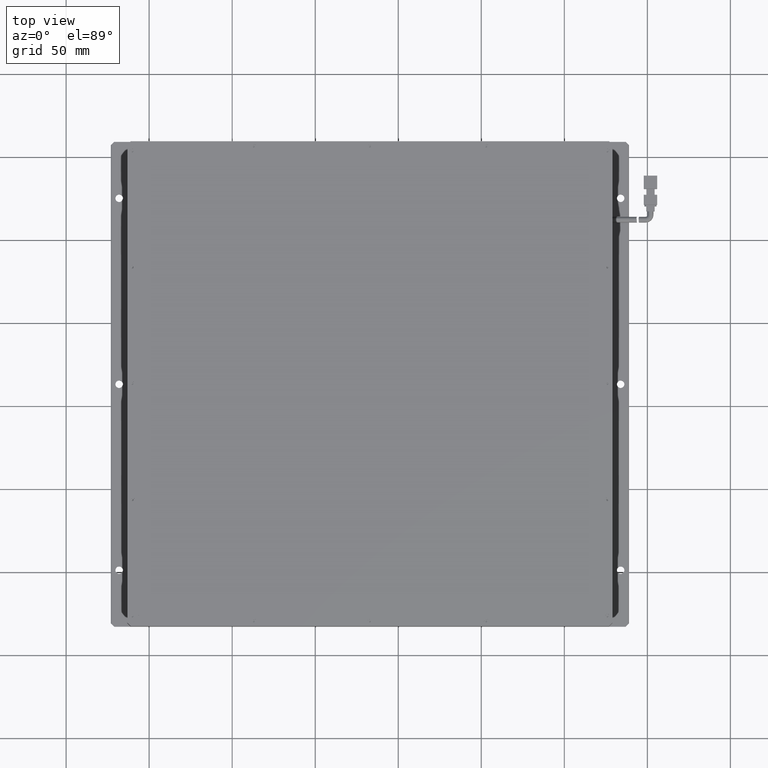
[diagram: clean part render]
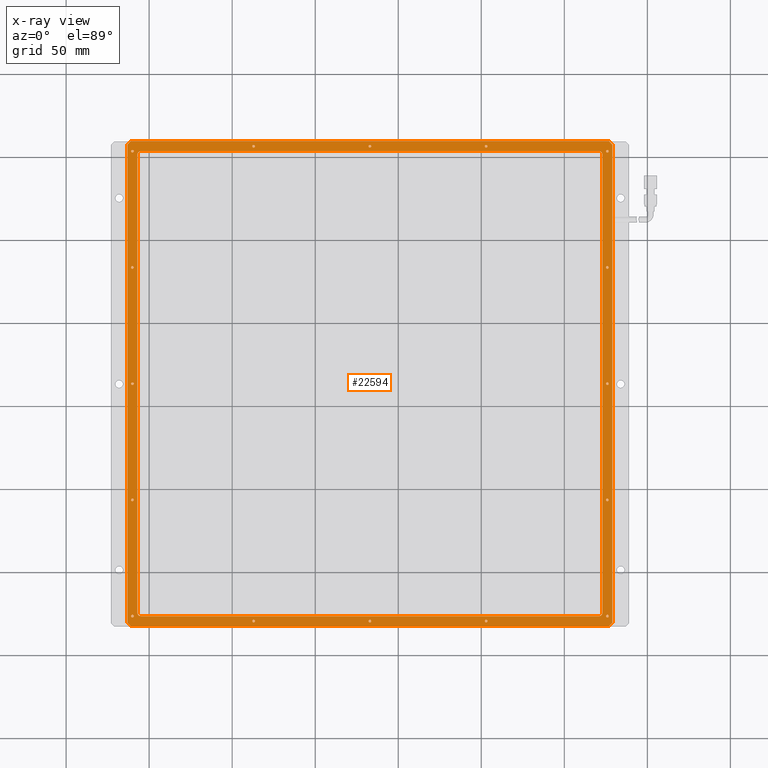
[diagram: x-ray — body ghosted, one internal face saturated and labeled with its STEP entity id]
A machine part, top view, then the same camera in x-ray: the body is ghosted and one INTERNAL B-rep face — a face not visible from any outside direction — is saturated and labeled: STEP entity #22594.
In plain terms, the highlighted planar face has unit normal (0, 0, 1).
Its self-contained STEP definition (entity closure, byte-faithful):
#50 = VERTEX_POINT ( 'NONE', #1793 ) ;
#62 = DIRECTION ( 'NONE',  ( 0.0000000000000000000, 0.0000000000000000000, -1.000000000000000000 ) ) ;
#113 = VECTOR ( 'NONE', #3622, 1000.000000000000000 ) ;
#332 = CARTESIAN_POINT ( 'NONE',  ( -107.0806771263419000, -132.7301954307733600, 8.499999999971805700 ) ) ;
#424 = EDGE_CURVE ( 'NONE', #12317, #22753, #7998, .T. ) ;
#478 = CARTESIAN_POINT ( 'NONE',  ( 102.1193228736582500, -129.7301954307733600, 8.499999999971805700 ) ) ;
#504 = CIRCLE ( 'NONE', #12794, 0.7999999999999951600 ) ;
#559 = LINE ( 'NONE', #19015, #12029 ) ;
#640 = FACE_BOUND ( 'NONE', #18698, .T. ) ;
#721 = CARTESIAN_POINT ( 'NONE',  ( -113.0806771263418400, -130.7301954307733100, 8.499999999971805700 ) ) ;
#850 = DIRECTION ( 'NONE',  ( 1.000000000000000000, 0.0000000000000000000, 0.0000000000000000000 ) ) ;
#1097 = AXIS2_PLACEMENT_3D ( 'NONE', #5478, #20531, #7674 ) ;
#1263 = VERTEX_POINT ( 'NONE', #12936 ) ;
#1323 = VERTEX_POINT ( 'NONE', #17939 ) ;
#1339 = CARTESIAN_POINT ( 'NONE',  ( -37.08067712634184700, -129.7301954307733600, 8.499999999971805700 ) ) ;
#1541 = DIRECTION ( 'NONE',  ( 1.000000000000000000, 0.0000000000000000000, 0.0000000000000000000 ) ) ;
#1647 = DIRECTION ( 'NONE',  ( 0.0000000000000000000, 0.0000000000000000000, -1.000000000000000000 ) ) ;
#1651 = VECTOR ( 'NONE', #25558, 1000.000000000000000 ) ;
#1728 = CARTESIAN_POINT ( 'NONE',  ( -37.08067712634184700, 156.2698045692266600, 8.499999999971805700 ) ) ;
#1776 = VECTOR ( 'NONE', #27655, 999.9999999999998900 ) ;
#1793 = CARTESIAN_POINT ( 'NONE',  ( -110.8806771263418400, 83.26980456922672100, 8.499999999971805700 ) ) ;
#1839 = EDGE_LOOP ( 'NONE', ( #2147, #25087 ) ) ;
#1900 = EDGE_LOOP ( 'NONE', ( #23514, #6297 ) ) ;
#1983 = ORIENTED_EDGE ( 'NONE', *, *, #2063, .T. ) ;
#2063 = EDGE_CURVE ( 'NONE', #11762, #8947, #25928, .T. ) ;
#2090 = CARTESIAN_POINT ( 'NONE',  ( 176.9193228736581900, 159.2698045692267500, 8.499999999971805700 ) ) ;
#2147 = ORIENTED_EDGE ( 'NONE', *, *, #8998, .T. ) ;
#2203 = VERTEX_POINT ( 'NONE', #18184 ) ;
#2238 = DIRECTION ( 'NONE',  ( 0.0000000000000000000, 0.0000000000000000000, -1.000000000000000000 ) ) ;
#2426 = VERTEX_POINT ( 'NONE', #10258 ) ;
#2656 = CIRCLE ( 'NONE', #8878, 0.7999999999999951600 ) ;
#2798 = DIRECTION ( 'NONE',  ( 1.000000000000000000, 0.0000000000000000000, 0.0000000000000000000 ) ) ;
#2836 = VERTEX_POINT ( 'NONE', #23861 ) ;
#2881 = DIRECTION ( 'NONE',  ( 0.7071067811865376900, -0.7071067811865574500, 0.0000000000000000000 ) ) ;
#3119 = VERTEX_POINT ( 'NONE', #18456 ) ;
#3228 = VERTEX_POINT ( 'NONE', #13165 ) ;
#3233 = ORIENTED_EDGE ( 'NONE', *, *, #424, .T. ) ;
#3492 = DIRECTION ( 'NONE',  ( 1.000000000000000000, 0.0000000000000000000, 0.0000000000000000000 ) ) ;
#3620 = EDGE_CURVE ( 'NONE', #11429, #25683, #9402, .T. ) ;
#3622 = DIRECTION ( 'NONE',  ( -0.0000000000000000000, 1.000000000000000000, 0.0000000000000000000 ) ) ;
#3641 = ORIENTED_EDGE ( 'NONE', *, *, #16183, .T. ) ;
#3754 = VERTEX_POINT ( 'NONE', #6618 ) ;
#3818 = DIRECTION ( 'NONE',  ( 0.0000000000000000000, 0.0000000000000000000, 1.000000000000000000 ) ) ;
#3832 = ORIENTED_EDGE ( 'NONE', *, *, #19200, .T. ) ;
#3846 = EDGE_CURVE ( 'NONE', #14495, #6368, #27754, .T. ) ;
#3924 = VERTEX_POINT ( 'NONE', #5199 ) ;
#3995 = CARTESIAN_POINT ( 'NONE',  ( 176.9193228736579000, -132.7301954307733900, 8.499999999971805700 ) ) ;
#4058 = CARTESIAN_POINT ( 'NONE',  ( 33.71932287365817200, 156.2698045692266600, 8.499999999971805700 ) ) ;
#4094 = DIRECTION ( 'NONE',  ( -0.0000000000000000000, -0.0000000000000000000, -1.000000000000000000 ) ) ;
#4140 = CARTESIAN_POINT ( 'NONE',  ( 175.9193228736581900, -56.73019543077334200, 8.499999999971805700 ) ) ;
#4235 = DIRECTION ( 'NONE',  ( 0.0000000000000000000, 0.0000000000000000000, -1.000000000000000000 ) ) ;
#4264 = DIRECTION ( 'NONE',  ( 0.0000000000000000000, 0.0000000000000000000, -1.000000000000000000 ) ) ;
#4274 = EDGE_CURVE ( 'NONE', #27012, #4838, #559, .T. ) ;
#4335 = EDGE_CURVE ( 'NONE', #17351, #3119, #18098, .T. ) ;
#4356 = AXIS2_PLACEMENT_3D ( 'NONE', #9405, #24348, #11567 ) ;
#4393 = EDGE_LOOP ( 'NONE', ( #10611, #11687 ) ) ;
#4442 = VERTEX_POINT ( 'NONE', #8756 ) ;
#4501 = EDGE_LOOP ( 'NONE', ( #17293, #17958 ) ) ;
#4527 = DIRECTION ( 'NONE',  ( 0.7071067811865650000, 0.7071067811865300300, 0.0000000000000000000 ) ) ;
#4559 = AXIS2_PLACEMENT_3D ( 'NONE', #13676, #15711, #2798 ) ;
#4707 = CARTESIAN_POINT ( 'NONE',  ( -113.0806771263418400, 159.2698045692266900, 8.499999999971805700 ) ) ;
#4760 = ORIENTED_EDGE ( 'NONE', *, *, #7381, .T. ) ;
#4807 = VECTOR ( 'NONE', #13617, 1000.000000000000000 ) ;
#4815 = CIRCLE ( 'NONE', #26429, 2.000000000000001800 ) ;
#4835 = LINE ( 'NONE', #332, #9884 ) ;
#4838 = VERTEX_POINT ( 'NONE', #11902 ) ;
#4845 = ORIENTED_EDGE ( 'NONE', *, *, #12743, .T. ) ;
#4998 = FACE_BOUND ( 'NONE', #9195, .T. ) ;
#5100 = VECTOR ( 'NONE', #4527, 1000.000000000000100 ) ;
#5195 = LINE ( 'NONE', #21860, #22261 ) ;
#5199 = CARTESIAN_POINT ( 'NONE',  ( -110.8806771263418400, -56.73019543077334200, 8.499999999971805700 ) ) ;
#5363 = EDGE_CURVE ( 'NONE', #11492, #17712, #18186, .T. ) ;
#5478 = CARTESIAN_POINT ( 'NONE',  ( -110.0806771263418400, 153.2698045692266600, 8.499999999971805700 ) ) ;
#5653 = EDGE_CURVE ( 'NONE', #3754, #14346, #6985, .T. ) ;
#5684 = FACE_BOUND ( 'NONE', #22458, .T. ) ;
#5702 = CIRCLE ( 'NONE', #19578, 0.8000000000000229200 ) ;
#5764 = CARTESIAN_POINT ( 'NONE',  ( -110.8806771263418400, 153.2698045692266600, 8.499999999971805700 ) ) ;
#5787 = EDGE_CURVE ( 'NONE', #50, #2203, #13052, .T. ) ;
#5788 = LINE ( 'NONE', #19596, #5100 ) ;
#5838 = LINE ( 'NONE', #7955, #113 ) ;
#5842 = CARTESIAN_POINT ( 'NONE',  ( -113.0806771263418400, 157.2698045692267200, 8.499999999971805700 ) ) ;
#5882 = AXIS2_PLACEMENT_3D ( 'NONE', #12980, #62, #15177 ) ;
#5888 = CARTESIAN_POINT ( 'NONE',  ( -110.8806771263418400, -126.7301954307733500, 8.499999999971805700 ) ) ;
#5945 = EDGE_CURVE ( 'NONE', #2203, #50, #24007, .T. ) ;
#6160 = ORIENTED_EDGE ( 'NONE', *, *, #5653, .T. ) ;
#6251 = AXIS2_PLACEMENT_3D ( 'NONE', #20444, #7571, #22499 ) ;
#6272 = CARTESIAN_POINT ( 'NONE',  ( -113.0806771263418400, -126.7301954307734100, 8.499999999971805700 ) ) ;
#6297 = ORIENTED_EDGE ( 'NONE', *, *, #16479, .T. ) ;
#6320 = DIRECTION ( 'NONE',  ( 1.000000000000000000, 0.0000000000000000000, 0.0000000000000000000 ) ) ;
#6368 = VERTEX_POINT ( 'NONE', #3995 ) ;
#6374 = FACE_BOUND ( 'NONE', #24618, .T. ) ;
#6606 = ORIENTED_EDGE ( 'NONE', *, *, #24436, .T. ) ;
#6618 = CARTESIAN_POINT ( 'NONE',  ( 32.11932287365817700, -129.7301954307733600, 8.499999999971805700 ) ) ;
#6717 = DIRECTION ( 'NONE',  ( 1.000000000000000000, 0.0000000000000000000, -0.0000000000000000000 ) ) ;
#6790 = CARTESIAN_POINT ( 'NONE',  ( 175.9193228736581900, 153.2698045692266600, 8.499999999971805700 ) ) ;
#6874 = CARTESIAN_POINT ( 'NONE',  ( 32.91932287365817400, 156.2698045692266600, 8.499999999971805700 ) ) ;
#6897 = EDGE_LOOP ( 'NONE', ( #6978, #10483 ) ) ;
#6928 = VERTEX_POINT ( 'NONE', #5764 ) ;
#6978 = ORIENTED_EDGE ( 'NONE', *, *, #24961, .T. ) ;
#6985 = CIRCLE ( 'NONE', #26753, 0.7999999999999951600 ) ;
#6999 = ORIENTED_EDGE ( 'NONE', *, *, #23525, .T. ) ;
#7076 = CARTESIAN_POINT ( 'NONE',  ( 102.1193228736582500, 156.2698045692266600, 8.499999999971805700 ) ) ;
#7212 = DIRECTION ( 'NONE',  ( 0.0000000000000000000, 0.0000000000000000000, -1.000000000000000000 ) ) ;
#7381 = EDGE_CURVE ( 'NONE', #9310, #2836, #14502, .T. ) ;
#7455 = EDGE_CURVE ( 'NONE', #14346, #3754, #11064, .T. ) ;
#7457 = EDGE_CURVE ( 'NONE', #3228, #1323, #25439, .T. ) ;
#7571 = DIRECTION ( 'NONE',  ( 0.0000000000000000000, 0.0000000000000000000, -1.000000000000000000 ) ) ;
#7578 = CARTESIAN_POINT ( 'NONE',  ( -113.0806771263418400, -132.7301954307733600, 8.499999999971805700 ) ) ;
#7674 = DIRECTION ( 'NONE',  ( 1.000000000000000000, 0.0000000000000000000, 0.0000000000000000000 ) ) ;
#7747 = CARTESIAN_POINT ( 'NONE',  ( 102.9193228736582300, 156.2698045692266600, 8.499999999971805700 ) ) ;
#7809 = CIRCLE ( 'NONE', #11195, 0.8000000000000229200 ) ;
#7890 = CARTESIAN_POINT ( 'NONE',  ( -37.08067712634184700, 156.2698045692266600, 8.499999999971805700 ) ) ;
#7902 = EDGE_LOOP ( 'NONE', ( #14910, #22941, #10384, #17649, #8822, #8657, #10318, #3832 ) ) ;
#7955 = CARTESIAN_POINT ( 'NONE',  ( 178.9193228736581900, -132.7301954307733600, 8.499999999971805700 ) ) ;
#7989 = AXIS2_PLACEMENT_3D ( 'NONE', #10800, #11443, #11160 ) ;
#7998 = CIRCLE ( 'NONE', #7989, 2.000000000000001800 ) ;
#8022 = AXIS2_PLACEMENT_3D ( 'NONE', #19851, #20021, #19760 ) ;
#8078 = DIRECTION ( 'NONE',  ( 0.0000000000000000000, 0.0000000000000000000, -1.000000000000000000 ) ) ;
#8135 = CARTESIAN_POINT ( 'NONE',  ( -110.0806771263418400, -56.73019543077334200, 8.499999999971805700 ) ) ;
#8304 = EDGE_CURVE ( 'NONE', #17712, #9339, #12340, .T. ) ;
#8416 = AXIS2_PLACEMENT_3D ( 'NONE', #24111, #24013, #23825 ) ;
#8435 = DIRECTION ( 'NONE',  ( -1.000000000000000000, -0.0000000000000000000, 0.0000000000000000000 ) ) ;
#8511 = EDGE_CURVE ( 'NONE', #19435, #12853, #12985, .T. ) ;
#8581 = DIRECTION ( 'NONE',  ( 1.000000000000000000, 0.0000000000000000000, 0.0000000000000000000 ) ) ;
#8636 = AXIS2_PLACEMENT_3D ( 'NONE', #11185, #26151, #13388 ) ;
#8657 = ORIENTED_EDGE ( 'NONE', *, *, #5363, .T. ) ;
#8732 = ORIENTED_EDGE ( 'NONE', *, *, #17129, .T. ) ;
#8756 = CARTESIAN_POINT ( 'NONE',  ( 175.1193228736581800, 83.26980456922672100, 8.499999999971805700 ) ) ;
#8815 = EDGE_LOOP ( 'NONE', ( #6606, #11640 ) ) ;
#8822 = ORIENTED_EDGE ( 'NONE', *, *, #13179, .T. ) ;
#8847 = EDGE_CURVE ( 'NONE', #12853, #19435, #21880, .T. ) ;
#8878 = AXIS2_PLACEMENT_3D ( 'NONE', #11434, #26376, #13620 ) ;
#8902 = CARTESIAN_POINT ( 'NONE',  ( 103.7193228736582300, 156.2698045692266600, 8.499999999971805700 ) ) ;
#8920 = CARTESIAN_POINT ( 'NONE',  ( 103.7193228736582300, -129.7301954307733600, 8.499999999971805700 ) ) ;
#8947 = VERTEX_POINT ( 'NONE', #8920 ) ;
#8950 = DIRECTION ( 'NONE',  ( 1.000000000000000000, 0.0000000000000000000, 0.0000000000000000000 ) ) ;
#8998 = EDGE_CURVE ( 'NONE', #25683, #11429, #27246, .T. ) ;
#9038 = DIRECTION ( 'NONE',  ( 1.000000000000000000, 0.0000000000000000000, 0.0000000000000000000 ) ) ;
#9092 = CARTESIAN_POINT ( 'NONE',  ( -110.0806771263418400, 13.26980456922666100, 8.499999999971805700 ) ) ;
#9195 = EDGE_LOOP ( 'NONE', ( #16217, #8732 ) ) ;
#9267 = CARTESIAN_POINT ( 'NONE',  ( -107.0806771263419000, 151.2698045692266100, 8.499999999971805700 ) ) ;
#9310 = VERTEX_POINT ( 'NONE', #22986 ) ;
#9339 = VERTEX_POINT ( 'NONE', #25144 ) ;
#9402 = CIRCLE ( 'NONE', #8416, 0.7999999999999951600 ) ;
#9405 = CARTESIAN_POINT ( 'NONE',  ( -110.0806771263418400, -126.7301954307733500, 8.499999999971805700 ) ) ;
#9478 = CIRCLE ( 'NONE', #23002, 0.7999999999999951600 ) ;
#9518 = VERTEX_POINT ( 'NONE', #19528 ) ;
#9860 = DIRECTION ( 'NONE',  ( 1.000000000000000000, 0.0000000000000000000, 0.0000000000000000000 ) ) ;
#9884 = VECTOR ( 'NONE', #13237, 1000.000000000000000 ) ;
#9909 = EDGE_LOOP ( 'NONE', ( #26731, #10608 ) ) ;
#10024 = DIRECTION ( 'NONE',  ( 1.000000000000000000, 0.0000000000000000000, 0.0000000000000000000 ) ) ;
#10114 = PLANE ( 'NONE',  #19884 ) ;
#10258 = CARTESIAN_POINT ( 'NONE',  ( 175.1193228736581800, 153.2698045692266600, 8.499999999971805700 ) ) ;
#10272 = EDGE_CURVE ( 'NONE', #25367, #19043, #25295, .T. ) ;
#10279 = EDGE_LOOP ( 'NONE', ( #11700, #17874 ) ) ;
#10281 = DIRECTION ( 'NONE',  ( 1.000000000000000000, 0.0000000000000000000, 0.0000000000000000000 ) ) ;
#10318 = ORIENTED_EDGE ( 'NONE', *, *, #8304, .T. ) ;
#10384 = ORIENTED_EDGE ( 'NONE', *, *, #3846, .T. ) ;
#10424 = LINE ( 'NONE', #721, #26810 ) ;
#10443 = CARTESIAN_POINT ( 'NONE',  ( -107.0806771263419000, -124.7301954307734100, 8.499999999971805700 ) ) ;
#10483 = ORIENTED_EDGE ( 'NONE', *, *, #21850, .T. ) ;
#10536 = DIRECTION ( 'NONE',  ( 0.0000000000000000000, 0.0000000000000000000, -1.000000000000000000 ) ) ;
#10608 = ORIENTED_EDGE ( 'NONE', *, *, #16651, .T. ) ;
#10611 = ORIENTED_EDGE ( 'NONE', *, *, #5945, .T. ) ;
#10633 = AXIS2_PLACEMENT_3D ( 'NONE', #17205, #4264, #19331 ) ;
#10640 = ORIENTED_EDGE ( 'NONE', *, *, #22559, .T. ) ;
#10735 = FACE_BOUND ( 'NONE', #8815, .T. ) ;
#10739 = CARTESIAN_POINT ( 'NONE',  ( 32.91932287365817400, -129.7301954307733600, 8.499999999971805700 ) ) ;
#10800 = CARTESIAN_POINT ( 'NONE',  ( 170.9193228736581300, 151.2698045692266100, 8.499999999971805700 ) ) ;
#10856 = CARTESIAN_POINT ( 'NONE',  ( 175.9193228736581900, 83.26980456922672100, 8.499999999971805700 ) ) ;
#10862 = AXIS2_PLACEMENT_3D ( 'NONE', #1728, #1647, #1541 ) ;
#10955 = CARTESIAN_POINT ( 'NONE',  ( 32.91932287365817400, -129.7301954307733600, 8.499999999971805700 ) ) ;
#10974 = EDGE_CURVE ( 'NONE', #19043, #12317, #16296, .T. ) ;
#11011 = DIRECTION ( 'NONE',  ( 0.0000000000000000000, 0.0000000000000000000, -1.000000000000000000 ) ) ;
#11064 = CIRCLE ( 'NONE', #23751, 0.7999999999999951600 ) ;
#11152 = DIRECTION ( 'NONE',  ( -0.0000000000000000000, 0.0000000000000000000, -1.000000000000000000 ) ) ;
#11160 = DIRECTION ( 'NONE',  ( 1.000000000000000000, 0.0000000000000000000, 0.0000000000000000000 ) ) ;
#11185 = CARTESIAN_POINT ( 'NONE',  ( -105.0806771263419000, 151.2698045692266100, 8.499999999971805700 ) ) ;
#11195 = AXIS2_PLACEMENT_3D ( 'NONE', #4140, #19224, #6320 ) ;
#11241 = DIRECTION ( 'NONE',  ( 1.000000000000000000, 0.0000000000000000000, 0.0000000000000000000 ) ) ;
#11338 = EDGE_CURVE ( 'NONE', #6928, #15326, #25577, .T. ) ;
#11400 = FACE_BOUND ( 'NONE', #10279, .T. ) ;
#11429 = VERTEX_POINT ( 'NONE', #12273 ) ;
#11431 = CARTESIAN_POINT ( 'NONE',  ( -113.0806771263418400, 153.2698045692266100, 8.499999999971805700 ) ) ;
#11434 = CARTESIAN_POINT ( 'NONE',  ( -110.0806771263418400, 153.2698045692266600, 8.499999999971805700 ) ) ;
#11443 = DIRECTION ( 'NONE',  ( -0.0000000000000000000, -0.0000000000000000000, -1.000000000000000000 ) ) ;
#11446 = CIRCLE ( 'NONE', #4356, 0.7999999999999951600 ) ;
#11492 = VERTEX_POINT ( 'NONE', #12482 ) ;
#11567 = DIRECTION ( 'NONE',  ( 1.000000000000000000, 0.0000000000000000000, 0.0000000000000000000 ) ) ;
#11614 = DIRECTION ( 'NONE',  ( 1.000000000000000000, 0.0000000000000000000, 0.0000000000000000000 ) ) ;
#11640 = ORIENTED_EDGE ( 'NONE', *, *, #20683, .T. ) ;
#11687 = ORIENTED_EDGE ( 'NONE', *, *, #5787, .T. ) ;
#11700 = ORIENTED_EDGE ( 'NONE', *, *, #12613, .T. ) ;
#11762 = VERTEX_POINT ( 'NONE', #478 ) ;
#11902 = CARTESIAN_POINT ( 'NONE',  ( -113.0806771263418400, -130.7301954307733100, 8.499999999971805700 ) ) ;
#11959 = DIRECTION ( 'NONE',  ( 0.0000000000000000000, 0.0000000000000000000, -1.000000000000000000 ) ) ;
#12029 = VECTOR ( 'NONE', #18577, 1000.000000000000000 ) ;
#12032 = CARTESIAN_POINT ( 'NONE',  ( -109.2806771263418400, 153.2698045692266600, 8.499999999971805700 ) ) ;
#12115 = FACE_BOUND ( 'NONE', #6897, .T. ) ;
#12141 = ORIENTED_EDGE ( 'NONE', *, *, #12706, .T. ) ;
#12273 = CARTESIAN_POINT ( 'NONE',  ( -110.8806771263418400, 13.26980456922666100, 8.499999999971805700 ) ) ;
#12275 = EDGE_CURVE ( 'NONE', #15326, #6928, #2656, .T. ) ;
#12317 = VERTEX_POINT ( 'NONE', #15880 ) ;
#12340 = LINE ( 'NONE', #4707, #23652 ) ;
#12374 = EDGE_LOOP ( 'NONE', ( #20207, #19707 ) ) ;
#12482 = CARTESIAN_POINT ( 'NONE',  ( 178.9193228736582500, 157.2698045692267200, 8.499999999971805700 ) ) ;
#12516 = DIRECTION ( 'NONE',  ( 0.0000000000000000000, 0.0000000000000000000, -1.000000000000000000 ) ) ;
#12613 = EDGE_CURVE ( 'NONE', #19738, #21325, #14672, .T. ) ;
#12706 = EDGE_CURVE ( 'NONE', #24592, #16095, #4815, .T. ) ;
#12743 = EDGE_CURVE ( 'NONE', #18529, #24592, #27607, .T. ) ;
#12794 = AXIS2_PLACEMENT_3D ( 'NONE', #24727, #11959, #26863 ) ;
#12795 = FACE_BOUND ( 'NONE', #1900, .T. ) ;
#12853 = VERTEX_POINT ( 'NONE', #8902 ) ;
#12936 = CARTESIAN_POINT ( 'NONE',  ( 172.9193228736581300, -124.7301954307734100, 8.499999999971805700 ) ) ;
#12957 = CARTESIAN_POINT ( 'NONE',  ( -109.2806771263418400, 13.26980456922666100, 8.499999999971805700 ) ) ;
#12961 = DIRECTION ( 'NONE',  ( 0.0000000000000000000, 0.0000000000000000000, -1.000000000000000000 ) ) ;
#12980 = CARTESIAN_POINT ( 'NONE',  ( 102.9193228736582300, 156.2698045692266600, 8.499999999971805700 ) ) ;
#12985 = CIRCLE ( 'NONE', #21796, 0.7999999999999951600 ) ;
#13017 = ORIENTED_EDGE ( 'NONE', *, *, #21825, .T. ) ;
#13052 = CIRCLE ( 'NONE', #24788, 0.7999999999999951600 ) ;
#13061 = DIRECTION ( 'NONE',  ( 1.000000000000000000, 0.0000000000000000000, 0.0000000000000000000 ) ) ;
#13165 = CARTESIAN_POINT ( 'NONE',  ( 176.7193228736582000, -126.7301954307733500, 8.499999999971805700 ) ) ;
#13179 = EDGE_CURVE ( 'NONE', #24781, #11492, #5838, .T. ) ;
#13237 = DIRECTION ( 'NONE',  ( -0.0000000000000000000, 1.000000000000000000, 0.0000000000000000000 ) ) ;
#13388 = DIRECTION ( 'NONE',  ( 1.000000000000000000, 0.0000000000000000000, 0.0000000000000000000 ) ) ;
#13576 = AXIS2_PLACEMENT_3D ( 'NONE', #20894, #8078, #23008 ) ;
#13617 = DIRECTION ( 'NONE',  ( 1.000000000000000000, 0.0000000000000000000, -0.0000000000000000000 ) ) ;
#13620 = DIRECTION ( 'NONE',  ( 1.000000000000000000, 0.0000000000000000000, 0.0000000000000000000 ) ) ;
#13676 = CARTESIAN_POINT ( 'NONE',  ( 175.9193228736581900, -126.7301954307733500, 8.499999999971805700 ) ) ;
#13768 = DIRECTION ( 'NONE',  ( 0.0000000000000000000, 0.0000000000000000000, -1.000000000000000000 ) ) ;
#13813 = DIRECTION ( 'NONE',  ( 1.000000000000000000, 0.0000000000000000000, 0.0000000000000000000 ) ) ;
#13889 = EDGE_CURVE ( 'NONE', #21325, #19738, #7809, .T. ) ;
#13948 = DIRECTION ( 'NONE',  ( 1.000000000000000000, 0.0000000000000000000, 0.0000000000000000000 ) ) ;
#13985 = DIRECTION ( 'NONE',  ( 0.0000000000000000000, 0.0000000000000000000, -1.000000000000000000 ) ) ;
#14005 = ORIENTED_EDGE ( 'NONE', *, *, #24201, .T. ) ;
#14008 = DIRECTION ( 'NONE',  ( 0.0000000000000000000, 0.0000000000000000000, -1.000000000000000000 ) ) ;
#14056 = CARTESIAN_POINT ( 'NONE',  ( 175.9193228736581900, 13.26980456922666100, 8.499999999971805700 ) ) ;
#14105 = CARTESIAN_POINT ( 'NONE',  ( -110.0806771263418400, 83.26980456922672100, 8.499999999971805700 ) ) ;
#14107 = CIRCLE ( 'NONE', #16383, 0.8000000000000229200 ) ;
#14124 = EDGE_CURVE ( 'NONE', #19376, #23975, #11446, .T. ) ;
#14346 = VERTEX_POINT ( 'NONE', #19381 ) ;
#14405 = ORIENTED_EDGE ( 'NONE', *, *, #7455, .T. ) ;
#14495 = VERTEX_POINT ( 'NONE', #24140 ) ;
#14502 = CIRCLE ( 'NONE', #10862, 0.7999999999999951600 ) ;
#14672 = CIRCLE ( 'NONE', #13576, 0.8000000000000229200 ) ;
#14910 = ORIENTED_EDGE ( 'NONE', *, *, #4274, .T. ) ;
#14949 = CARTESIAN_POINT ( 'NONE',  ( -111.0806771263418300, 159.2698045692267500, 8.499999999971805700 ) ) ;
#15177 = DIRECTION ( 'NONE',  ( 1.000000000000000000, 0.0000000000000000000, 0.0000000000000000000 ) ) ;
#15193 = CARTESIAN_POINT ( 'NONE',  ( 175.9193228736581900, 83.26980456922672100, 8.499999999971805700 ) ) ;
#15269 = AXIS2_PLACEMENT_3D ( 'NONE', #26501, #13768, #850 ) ;
#15326 = VERTEX_POINT ( 'NONE', #12032 ) ;
#15368 = ORIENTED_EDGE ( 'NONE', *, *, #25303, .T. ) ;
#15437 = CARTESIAN_POINT ( 'NONE',  ( 32.11932287365817700, 156.2698045692266600, 8.499999999971805700 ) ) ;
#15711 = DIRECTION ( 'NONE',  ( 0.0000000000000000000, 0.0000000000000000000, -1.000000000000000000 ) ) ;
#15770 = ORIENTED_EDGE ( 'NONE', *, *, #17702, .T. ) ;
#15790 = CARTESIAN_POINT ( 'NONE',  ( 175.1193228736581800, 13.26980456922666100, 8.499999999971805700 ) ) ;
#15880 = CARTESIAN_POINT ( 'NONE',  ( 170.9193228736581300, 153.2698045692266100, 8.499999999971805700 ) ) ;
#15907 = CIRCLE ( 'NONE', #21578, 0.8000000000000229200 ) ;
#16095 = VERTEX_POINT ( 'NONE', #10443 ) ;
#16183 = EDGE_CURVE ( 'NONE', #2426, #22303, #5702, .T. ) ;
#16217 = ORIENTED_EDGE ( 'NONE', *, *, #14124, .T. ) ;
#16296 = LINE ( 'NONE', #11431, #4807 ) ;
#16346 = EDGE_LOOP ( 'NONE', ( #24669, #25193 ) ) ;
#16383 = AXIS2_PLACEMENT_3D ( 'NONE', #15193, #2238, #17347 ) ;
#16396 = DIRECTION ( 'NONE',  ( 0.0000000000000000000, 0.0000000000000000000, -1.000000000000000000 ) ) ;
#16479 = EDGE_CURVE ( 'NONE', #17869, #25060, #23080, .T. ) ;
#16480 = FACE_BOUND ( 'NONE', #1839, .T. ) ;
#16651 = EDGE_CURVE ( 'NONE', #4442, #9518, #14107, .T. ) ;
#16740 = CARTESIAN_POINT ( 'NONE',  ( -113.0806771263418400, -132.7301954307733600, 8.499999999971805700 ) ) ;
#17028 = CARTESIAN_POINT ( 'NONE',  ( -105.0806771263419000, -124.7301954307734100, 8.499999999971805700 ) ) ;
#17061 = CARTESIAN_POINT ( 'NONE',  ( 176.7193228736582000, -56.73019543077334200, 8.499999999971805700 ) ) ;
#17129 = EDGE_CURVE ( 'NONE', #23975, #19376, #20040, .T. ) ;
#17178 = CARTESIAN_POINT ( 'NONE',  ( 175.9193228736581900, 153.2698045692266600, 8.499999999971805700 ) ) ;
#17181 = FACE_BOUND ( 'NONE', #16346, .T. ) ;
#17205 = CARTESIAN_POINT ( 'NONE',  ( 102.9193228736582300, -129.7301954307733600, 8.499999999971805700 ) ) ;
#17269 = VERTEX_POINT ( 'NONE', #15437 ) ;
#17293 = ORIENTED_EDGE ( 'NONE', *, *, #12275, .T. ) ;
#17347 = DIRECTION ( 'NONE',  ( 1.000000000000000000, 0.0000000000000000000, 0.0000000000000000000 ) ) ;
#17351 = VERTEX_POINT ( 'NONE', #15790 ) ;
#17383 = CIRCLE ( 'NONE', #25963, 2.000000000000001800 ) ;
#17411 = CARTESIAN_POINT ( 'NONE',  ( 172.9193228736581300, 151.2698045692266100, 8.499999999971805700 ) ) ;
#17493 = CARTESIAN_POINT ( 'NONE',  ( -37.88067712634184400, -129.7301954307733600, 8.499999999971805700 ) ) ;
#17649 = ORIENTED_EDGE ( 'NONE', *, *, #19319, .T. ) ;
#17702 = EDGE_CURVE ( 'NONE', #8947, #11762, #21865, .T. ) ;
#17703 = EDGE_LOOP ( 'NONE', ( #15770, #1983 ) ) ;
#17712 = VERTEX_POINT ( 'NONE', #2090 ) ;
#17867 = FACE_BOUND ( 'NONE', #19490, .T. ) ;
#17869 = VERTEX_POINT ( 'NONE', #17493 ) ;
#17874 = ORIENTED_EDGE ( 'NONE', *, *, #13889, .T. ) ;
#17939 = CARTESIAN_POINT ( 'NONE',  ( 175.1193228736581800, -126.7301954307733500, 8.499999999971805700 ) ) ;
#17958 = ORIENTED_EDGE ( 'NONE', *, *, #11338, .T. ) ;
#17996 = CIRCLE ( 'NONE', #18702, 0.8000000000000229200 ) ;
#18098 = CIRCLE ( 'NONE', #25830, 0.8000000000000229200 ) ;
#18137 = AXIS2_PLACEMENT_3D ( 'NONE', #20104, #7212, #22142 ) ;
#18182 = ORIENTED_EDGE ( 'NONE', *, *, #25275, .T. ) ;
#18184 = CARTESIAN_POINT ( 'NONE',  ( -109.2806771263418400, 83.26980456922672100, 8.499999999971805700 ) ) ;
#18186 = LINE ( 'NONE', #19183, #1651 ) ;
#18211 = AXIS2_PLACEMENT_3D ( 'NONE', #8135, #23078, #10281 ) ;
#18456 = CARTESIAN_POINT ( 'NONE',  ( 176.7193228736582000, 13.26980456922666100, 8.499999999971805700 ) ) ;
#18529 = VERTEX_POINT ( 'NONE', #24613 ) ;
#18577 = DIRECTION ( 'NONE',  ( 0.0000000000000000000, -1.000000000000000000, -0.0000000000000000000 ) ) ;
#18698 = EDGE_LOOP ( 'NONE', ( #13017, #3641 ) ) ;
#18702 = AXIS2_PLACEMENT_3D ( 'NONE', #10856, #25824, #13061 ) ;
#18726 = CARTESIAN_POINT ( 'NONE',  ( -36.28067712634185000, -129.7301954307733600, 8.499999999971805700 ) ) ;
#18736 = ORIENTED_EDGE ( 'NONE', *, *, #10272, .T. ) ;
#18881 = DIRECTION ( 'NONE',  ( 1.000000000000000000, 0.0000000000000000000, -0.0000000000000000000 ) ) ;
#18892 = AXIS2_PLACEMENT_3D ( 'NONE', #1339, #16396, #3492 ) ;
#19015 = CARTESIAN_POINT ( 'NONE',  ( -113.0806771263418400, -132.7301954307733600, 8.499999999971805700 ) ) ;
#19043 = VERTEX_POINT ( 'NONE', #22785 ) ;
#19176 = DIRECTION ( 'NONE',  ( 1.000000000000000000, 0.0000000000000000000, 0.0000000000000000000 ) ) ;
#19183 = CARTESIAN_POINT ( 'NONE',  ( 178.9193228736581900, 157.2698045692267200, 8.499999999971805700 ) ) ;
#19200 = EDGE_CURVE ( 'NONE', #9339, #27012, #23869, .T. ) ;
#19204 = CIRCLE ( 'NONE', #18137, 0.8000000000000229200 ) ;
#19224 = DIRECTION ( 'NONE',  ( 0.0000000000000000000, 0.0000000000000000000, -1.000000000000000000 ) ) ;
#19226 = CARTESIAN_POINT ( 'NONE',  ( -109.2806771263418400, -56.73019543077334200, 8.499999999971805700 ) ) ;
#19293 = CARTESIAN_POINT ( 'NONE',  ( 175.1193228736581800, -56.73019543077334200, 8.499999999971805700 ) ) ;
#19304 = DIRECTION ( 'NONE',  ( 1.000000000000000000, 0.0000000000000000000, 0.0000000000000000000 ) ) ;
#19319 = EDGE_CURVE ( 'NONE', #6368, #24781, #5788, .T. ) ;
#19331 = DIRECTION ( 'NONE',  ( 1.000000000000000000, 0.0000000000000000000, 0.0000000000000000000 ) ) ;
#19372 = CARTESIAN_POINT ( 'NONE',  ( 176.7193228736582000, 153.2698045692266600, 8.499999999971805700 ) ) ;
#19376 = VERTEX_POINT ( 'NONE', #19776 ) ;
#19381 = CARTESIAN_POINT ( 'NONE',  ( 33.71932287365817200, -129.7301954307733600, 8.499999999971805700 ) ) ;
#19435 = VERTEX_POINT ( 'NONE', #7076 ) ;
#19438 = DIRECTION ( 'NONE',  ( 1.000000000000000000, 0.0000000000000000000, 0.0000000000000000000 ) ) ;
#19490 = EDGE_LOOP ( 'NONE', ( #14405, #6160 ) ) ;
#19528 = CARTESIAN_POINT ( 'NONE',  ( 176.7193228736582000, 83.26980456922672100, 8.499999999971805700 ) ) ;
#19578 = AXIS2_PLACEMENT_3D ( 'NONE', #17178, #4235, #19304 ) ;
#19596 = CARTESIAN_POINT ( 'NONE',  ( 176.9193228736579000, -132.7301954307733900, 8.499999999971805700 ) ) ;
#19668 = CARTESIAN_POINT ( 'NONE',  ( 178.9193228736582500, -130.7301954307732200, 8.499999999971805700 ) ) ;
#19707 = ORIENTED_EDGE ( 'NONE', *, *, #8511, .T. ) ;
#19738 = VERTEX_POINT ( 'NONE', #17061 ) ;
#19760 = DIRECTION ( 'NONE',  ( 1.000000000000000000, 0.0000000000000000000, 0.0000000000000000000 ) ) ;
#19776 = CARTESIAN_POINT ( 'NONE',  ( -109.2806771263418400, -126.7301954307733500, 8.499999999971805700 ) ) ;
#19785 = DIRECTION ( 'NONE',  ( -1.000000000000000000, -0.0000000000000000000, 0.0000000000000000000 ) ) ;
#19851 = CARTESIAN_POINT ( 'NONE',  ( 102.9193228736582300, -129.7301954307733600, 8.499999999971805700 ) ) ;
#19884 = AXIS2_PLACEMENT_3D ( 'NONE', #16740, #3818, #18881 ) ;
#20021 = DIRECTION ( 'NONE',  ( 0.0000000000000000000, 0.0000000000000000000, -1.000000000000000000 ) ) ;
#20040 = CIRCLE ( 'NONE', #23306, 0.7999999999999951600 ) ;
#20086 = AXIS2_PLACEMENT_3D ( 'NONE', #23794, #11011, #25977 ) ;
#20104 = CARTESIAN_POINT ( 'NONE',  ( 175.9193228736581900, 13.26980456922666100, 8.499999999971805700 ) ) ;
#20207 = ORIENTED_EDGE ( 'NONE', *, *, #8847, .T. ) ;
#20444 = CARTESIAN_POINT ( 'NONE',  ( -110.0806771263418400, -56.73019543077334200, 8.499999999971805700 ) ) ;
#20502 = CIRCLE ( 'NONE', #26101, 0.7999999999999951600 ) ;
#20522 = DIRECTION ( 'NONE',  ( 0.0000000000000000000, 0.0000000000000000000, -1.000000000000000000 ) ) ;
#20531 = DIRECTION ( 'NONE',  ( 0.0000000000000000000, 0.0000000000000000000, -1.000000000000000000 ) ) ;
#20683 = EDGE_CURVE ( 'NONE', #3924, #23243, #21117, .T. ) ;
#20699 = CIRCLE ( 'NONE', #15269, 0.8000000000000229200 ) ;
#20854 = CARTESIAN_POINT ( 'NONE',  ( -110.0806771263418400, 83.26980456922672100, 8.499999999971805700 ) ) ;
#20894 = CARTESIAN_POINT ( 'NONE',  ( 175.9193228736581900, -56.73019543077334200, 8.499999999971805700 ) ) ;
#21117 = CIRCLE ( 'NONE', #18211, 0.7999999999999951600 ) ;
#21316 = ORIENTED_EDGE ( 'NONE', *, *, #7457, .T. ) ;
#21325 = VERTEX_POINT ( 'NONE', #19293 ) ;
#21438 = FACE_BOUND ( 'NONE', #25546, .T. ) ;
#21578 = AXIS2_PLACEMENT_3D ( 'NONE', #6790, #21729, #8950 ) ;
#21729 = DIRECTION ( 'NONE',  ( 0.0000000000000000000, 0.0000000000000000000, -1.000000000000000000 ) ) ;
#21796 = AXIS2_PLACEMENT_3D ( 'NONE', #7747, #22664, #9860 ) ;
#21804 = DIRECTION ( 'NONE',  ( 0.0000000000000000000, 0.0000000000000000000, -1.000000000000000000 ) ) ;
#21825 = EDGE_CURVE ( 'NONE', #22303, #2426, #15907, .T. ) ;
#21850 = EDGE_CURVE ( 'NONE', #17269, #26289, #9478, .T. ) ;
#21860 = CARTESIAN_POINT ( 'NONE',  ( 172.9193228736581300, -132.7301954307733600, 8.499999999971805700 ) ) ;
#21865 = CIRCLE ( 'NONE', #10633, 0.7999999999999951600 ) ;
#21880 = CIRCLE ( 'NONE', #5882, 0.7999999999999951600 ) ;
#22037 = VECTOR ( 'NONE', #6717, 1000.000000000000000 ) ;
#22061 = FACE_BOUND ( 'NONE', #4393, .T. ) ;
#22142 = DIRECTION ( 'NONE',  ( 1.000000000000000000, 0.0000000000000000000, 0.0000000000000000000 ) ) ;
#22261 = VECTOR ( 'NONE', #24034, 1000.000000000000000 ) ;
#22303 = VERTEX_POINT ( 'NONE', #19372 ) ;
#22402 = EDGE_CURVE ( 'NONE', #3119, #17351, #19204, .T. ) ;
#22458 = EDGE_LOOP ( 'NONE', ( #21316, #6999 ) ) ;
#22499 = DIRECTION ( 'NONE',  ( 1.000000000000000000, 0.0000000000000000000, 0.0000000000000000000 ) ) ;
#22559 = EDGE_CURVE ( 'NONE', #2836, #9310, #20502, .T. ) ;
#22560 = CIRCLE ( 'NONE', #6251, 0.7999999999999951600 ) ;
#22594 = ADVANCED_FACE ( 'NONE', ( #24099, #17867, #12795, #23433, #12115, #6374, #640, #22749, #17181, #11400, #5684, #27783, #22061, #16480, #10735, #4998, #27107, #21438 ), #10114, .T. ) ;
#22664 = DIRECTION ( 'NONE',  ( 0.0000000000000000000, 0.0000000000000000000, -1.000000000000000000 ) ) ;
#22749 = FACE_BOUND ( 'NONE', #9909, .T. ) ;
#22753 = VERTEX_POINT ( 'NONE', #17411 ) ;
#22785 = CARTESIAN_POINT ( 'NONE',  ( -105.0806771263419000, 153.2698045692266100, 8.499999999971805700 ) ) ;
#22795 = AXIS2_PLACEMENT_3D ( 'NONE', #20854, #20522, #19438 ) ;
#22803 = DIRECTION ( 'NONE',  ( 0.0000000000000000000, 0.0000000000000000000, -1.000000000000000000 ) ) ;
#22941 = ORIENTED_EDGE ( 'NONE', *, *, #27808, .T. ) ;
#22958 = CARTESIAN_POINT ( 'NONE',  ( -105.0806771263419000, -126.7301954307734100, 8.499999999971805700 ) ) ;
#22986 = CARTESIAN_POINT ( 'NONE',  ( -36.28067712634185000, 156.2698045692266600, 8.499999999971805700 ) ) ;
#23002 = AXIS2_PLACEMENT_3D ( 'NONE', #6874, #21804, #9038 ) ;
#23008 = DIRECTION ( 'NONE',  ( 1.000000000000000000, 0.0000000000000000000, 0.0000000000000000000 ) ) ;
#23078 = DIRECTION ( 'NONE',  ( 0.0000000000000000000, 0.0000000000000000000, -1.000000000000000000 ) ) ;
#23080 = CIRCLE ( 'NONE', #18892, 0.7999999999999951600 ) ;
#23243 = VERTEX_POINT ( 'NONE', #19226 ) ;
#23306 = AXIS2_PLACEMENT_3D ( 'NONE', #25264, #12516, #27410 ) ;
#23322 = EDGE_CURVE ( 'NONE', #25060, #17869, #25349, .T. ) ;
#23433 = FACE_BOUND ( 'NONE', #12374, .T. ) ;
#23514 = ORIENTED_EDGE ( 'NONE', *, *, #23322, .T. ) ;
#23525 = EDGE_CURVE ( 'NONE', #1323, #3228, #20699, .T. ) ;
#23652 = VECTOR ( 'NONE', #19785, 1000.000000000000000 ) ;
#23751 = AXIS2_PLACEMENT_3D ( 'NONE', #10739, #10536, #8581 ) ;
#23794 = CARTESIAN_POINT ( 'NONE',  ( -37.08067712634184700, -129.7301954307733600, 8.499999999971805700 ) ) ;
#23825 = DIRECTION ( 'NONE',  ( 1.000000000000000000, 0.0000000000000000000, 0.0000000000000000000 ) ) ;
#23861 = CARTESIAN_POINT ( 'NONE',  ( -37.88067712634184400, 156.2698045692266600, 8.499999999971805700 ) ) ;
#23869 = LINE ( 'NONE', #14949, #1776 ) ;
#23932 = CARTESIAN_POINT ( 'NONE',  ( 170.9193228736581300, -124.7301954307734100, 8.499999999971805700 ) ) ;
#23975 = VERTEX_POINT ( 'NONE', #5888 ) ;
#24007 = CIRCLE ( 'NONE', #22795, 0.7999999999999951600 ) ;
#24013 = DIRECTION ( 'NONE',  ( 0.0000000000000000000, 0.0000000000000000000, -1.000000000000000000 ) ) ;
#24032 = DIRECTION ( 'NONE',  ( 0.0000000000000000000, 0.0000000000000000000, -1.000000000000000000 ) ) ;
#24034 = DIRECTION ( 'NONE',  ( 0.0000000000000000000, -1.000000000000000000, -0.0000000000000000000 ) ) ;
#24099 = FACE_BOUND ( 'NONE', #17703, .T. ) ;
#24111 = CARTESIAN_POINT ( 'NONE',  ( -110.0806771263418400, 13.26980456922666100, 8.499999999971805700 ) ) ;
#24140 = CARTESIAN_POINT ( 'NONE',  ( -111.0806771263418400, -132.7301954307733600, 8.499999999971805700 ) ) ;
#24201 = EDGE_CURVE ( 'NONE', #16095, #25367, #4835, .T. ) ;
#24348 = DIRECTION ( 'NONE',  ( 0.0000000000000000000, 0.0000000000000000000, -1.000000000000000000 ) ) ;
#24379 = ORIENTED_EDGE ( 'NONE', *, *, #10974, .T. ) ;
#24436 = EDGE_CURVE ( 'NONE', #23243, #3924, #22560, .T. ) ;
#24527 = AXIS2_PLACEMENT_3D ( 'NONE', #9092, #24032, #11241 ) ;
#24592 = VERTEX_POINT ( 'NONE', #22958 ) ;
#24613 = CARTESIAN_POINT ( 'NONE',  ( 170.9193228736581300, -126.7301954307734100, 8.499999999971805700 ) ) ;
#24618 = EDGE_LOOP ( 'NONE', ( #4760, #10640 ) ) ;
#24669 = ORIENTED_EDGE ( 'NONE', *, *, #22402, .T. ) ;
#24727 = CARTESIAN_POINT ( 'NONE',  ( 32.91932287365817400, 156.2698045692266600, 8.499999999971805700 ) ) ;
#24781 = VERTEX_POINT ( 'NONE', #19668 ) ;
#24788 = AXIS2_PLACEMENT_3D ( 'NONE', #14105, #14008, #13813 ) ;
#24961 = EDGE_CURVE ( 'NONE', #26289, #17269, #504, .T. ) ;
#25060 = VERTEX_POINT ( 'NONE', #18726 ) ;
#25087 = ORIENTED_EDGE ( 'NONE', *, *, #3620, .T. ) ;
#25144 = CARTESIAN_POINT ( 'NONE',  ( -111.0806771263418400, 159.2698045692267500, 8.499999999971805700 ) ) ;
#25193 = ORIENTED_EDGE ( 'NONE', *, *, #4335, .T. ) ;
#25264 = CARTESIAN_POINT ( 'NONE',  ( -110.0806771263418400, -126.7301954307733500, 8.499999999971805700 ) ) ;
#25275 = EDGE_CURVE ( 'NONE', #1263, #18529, #17383, .T. ) ;
#25295 = CIRCLE ( 'NONE', #8636, 2.000000000000001800 ) ;
#25303 = EDGE_CURVE ( 'NONE', #22753, #1263, #5195, .T. ) ;
#25349 = CIRCLE ( 'NONE', #20086, 0.7999999999999951600 ) ;
#25367 = VERTEX_POINT ( 'NONE', #9267 ) ;
#25439 = CIRCLE ( 'NONE', #4559, 0.8000000000000229200 ) ;
#25546 = EDGE_LOOP ( 'NONE', ( #24379, #3233, #15368, #18182, #4845, #12141, #14005, #18736 ) ) ;
#25558 = DIRECTION ( 'NONE',  ( -0.7071067811865573400, 0.7071067811865378000, 0.0000000000000000000 ) ) ;
#25577 = CIRCLE ( 'NONE', #1097, 0.7999999999999951600 ) ;
#25683 = VERTEX_POINT ( 'NONE', #12957 ) ;
#25717 = EDGE_CURVE ( 'NONE', #9518, #4442, #17996, .T. ) ;
#25824 = DIRECTION ( 'NONE',  ( 0.0000000000000000000, 0.0000000000000000000, -1.000000000000000000 ) ) ;
#25830 = AXIS2_PLACEMENT_3D ( 'NONE', #14056, #13985, #13948 ) ;
#25928 = CIRCLE ( 'NONE', #8022, 0.7999999999999951600 ) ;
#25963 = AXIS2_PLACEMENT_3D ( 'NONE', #23932, #11152, #26124 ) ;
#25977 = DIRECTION ( 'NONE',  ( 1.000000000000000000, 0.0000000000000000000, 0.0000000000000000000 ) ) ;
#26101 = AXIS2_PLACEMENT_3D ( 'NONE', #7890, #22803, #10024 ) ;
#26124 = DIRECTION ( 'NONE',  ( 1.000000000000000000, 0.0000000000000000000, 0.0000000000000000000 ) ) ;
#26151 = DIRECTION ( 'NONE',  ( 0.0000000000000000000, -0.0000000000000000000, -1.000000000000000000 ) ) ;
#26289 = VERTEX_POINT ( 'NONE', #4058 ) ;
#26376 = DIRECTION ( 'NONE',  ( 0.0000000000000000000, 0.0000000000000000000, -1.000000000000000000 ) ) ;
#26429 = AXIS2_PLACEMENT_3D ( 'NONE', #17028, #4094, #19176 ) ;
#26501 = CARTESIAN_POINT ( 'NONE',  ( 175.9193228736581900, -126.7301954307733500, 8.499999999971805700 ) ) ;
#26731 = ORIENTED_EDGE ( 'NONE', *, *, #25717, .T. ) ;
#26753 = AXIS2_PLACEMENT_3D ( 'NONE', #10955, #12961, #11614 ) ;
#26810 = VECTOR ( 'NONE', #2881, 999.9999999999998900 ) ;
#26863 = DIRECTION ( 'NONE',  ( 1.000000000000000000, 0.0000000000000000000, 0.0000000000000000000 ) ) ;
#26928 = VECTOR ( 'NONE', #8435, 1000.000000000000000 ) ;
#27012 = VERTEX_POINT ( 'NONE', #5842 ) ;
#27107 = FACE_OUTER_BOUND ( 'NONE', #7902, .T. ) ;
#27246 = CIRCLE ( 'NONE', #24527, 0.7999999999999951600 ) ;
#27410 = DIRECTION ( 'NONE',  ( 1.000000000000000000, 0.0000000000000000000, 0.0000000000000000000 ) ) ;
#27607 = LINE ( 'NONE', #6272, #26928 ) ;
#27655 = DIRECTION ( 'NONE',  ( -0.7071067811865486800, -0.7071067811865464600, 0.0000000000000000000 ) ) ;
#27754 = LINE ( 'NONE', #7578, #22037 ) ;
#27783 = FACE_BOUND ( 'NONE', #4501, .T. ) ;
#27808 = EDGE_CURVE ( 'NONE', #4838, #14495, #10424, .T. ) ;